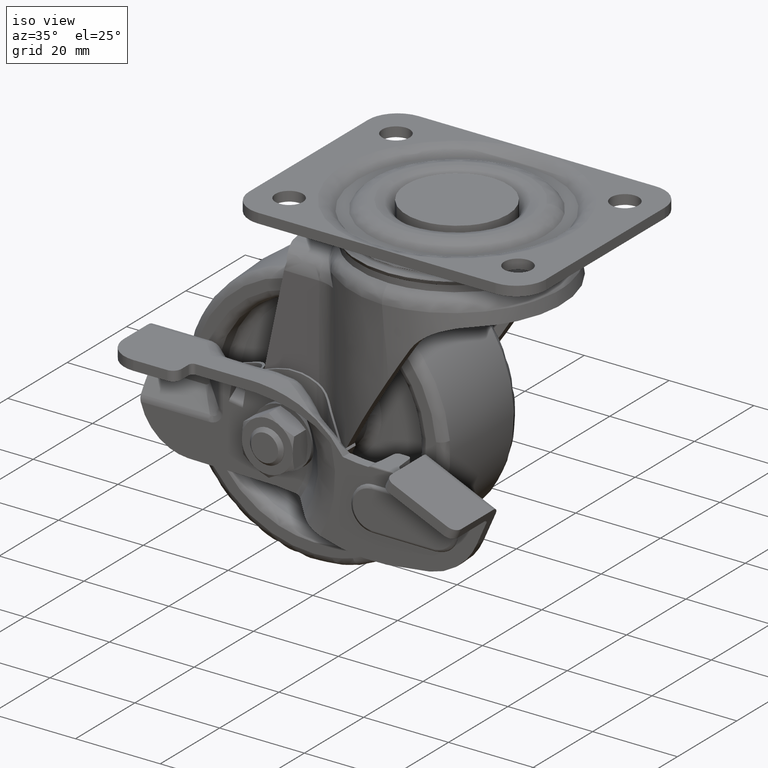
[diagram: clean part render]
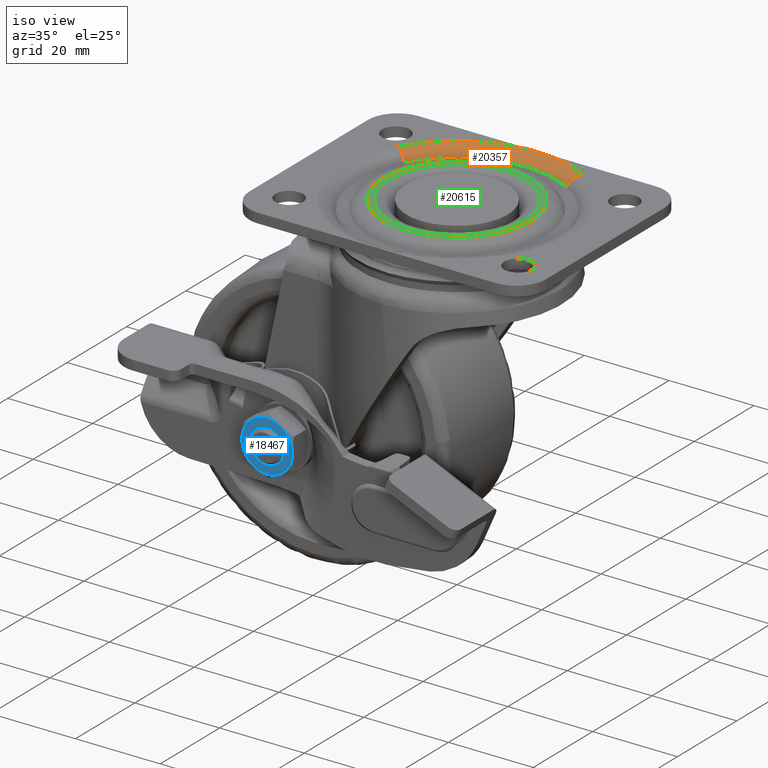
[diagram: same view with three faces highlighted in distinct colors, each labeled with its STEP entity id]
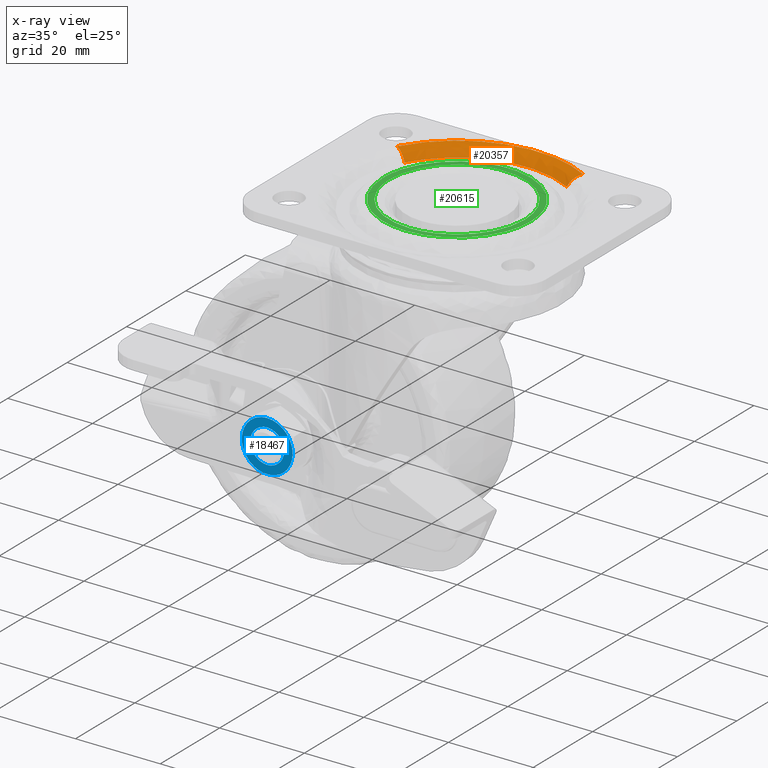
[diagram: x-ray of the same camera — body ghosted, the three highlighted faces saturated]
A machine part, iso view with three faces highlighted in distinct colors.
The next image is the same camera in x-ray (body ghosted, the three faces saturated) — at least one of them is partly hidden behind the body in this view.
Their STEP definitions:

[orange] entity #20357 — the highlighted face is a freeform B-spline surface patch.
#20154=CARTESIAN_POINT('',(11.579092526667321,20.449318235165091,-1.999999999108966));
#20155=VERTEX_POINT('',#20154);
#20205=CARTESIAN_POINT('',(-20.449318235477602,11.579092526888640,-1.999999998449067));
#20206=VERTEX_POINT('',#20205);
#20216=CARTESIAN_POINT('',(-23.463721929436009,13.285945149702910,-3.123845E-012));
#20217=VERTEX_POINT('',#20216);
#20218=CARTESIAN_POINT('',(-20.449318235477602,11.579092526888640,-1.999999998449067));
#20219=CARTESIAN_POINT('',(-20.667339708762839,11.702543164913401,-1.565164073937066));
#20220=CARTESIAN_POINT('',(-21.134728697079900,11.967193723795690,-0.943588587144106));
#20221=CARTESIAN_POINT('',(-21.881321006400949,12.389938355912690,-0.410306147462007));
#20222=CARTESIAN_POINT('',(-22.609500390713428,12.802257101068120,-0.087504078621287));
#20223=CARTESIAN_POINT('',(-23.121974803535299,13.092436781064089,0.000199658189767));
#20224=CARTESIAN_POINT('',(-23.463721929436009,13.285945149702910,-3.123845E-012));
#20225=B_SPLINE_CURVE_WITH_KNOTS('',3,(#20218,#20219,#20220,#20221,#20222,#20223,#20224),.UNSPECIFIED.,.F.,.U.,(4,1,1,1,4),(0.000000103186929,1.505367290253096,2.421646078311489,3.010721266287637,4.188833391078926),.UNSPECIFIED.);
#20226=EDGE_CURVE('',#20206,#20217,#20225,.T.);
#20277=CARTESIAN_POINT('',(13.285945149702901,23.463721929436009,-3.123845E-012));
#20278=VERTEX_POINT('',#20277);
#20292=CARTESIAN_POINT('',(11.579092526667321,20.449318235165091,-1.999999999108966));
#20293=CARTESIAN_POINT('',(11.675771421454320,20.620059151319801,-1.659809095683757));
#20294=CARTESIAN_POINT('',(11.898795928529131,21.013934042757469,-1.089957049776097));
#20295=CARTESIAN_POINT('',(12.336376419593311,21.786727456032420,-0.442384095709560));
#20296=CARTESIAN_POINT('',(12.802205228452641,22.609408789777550,-0.077765672591166));
#20297=CARTESIAN_POINT('',(13.135451312346911,23.197940987953508,0.000042837590866));
#20298=CARTESIAN_POINT('',(13.285945149702901,23.463721929436009,-3.123845E-012));
#20299=B_SPLINE_CURVE_WITH_KNOTS('',3,(#20292,#20293,#20294,#20295,#20296,#20297,#20298),.UNSPECIFIED.,.F.,.U.,(4,1,1,1,4),(0.000000103186815,1.178112228230108,2.159833247337222,3.272528872624006,4.188833391974493),.UNSPECIFIED.);
#20300=EDGE_CURVE('',#20155,#20278,#20299,.T.);
#20305=CARTESIAN_POINT('',(-20.366772381418397,11.532352284864949,-2.174132972196624));
#20306=CARTESIAN_POINT('',(-8.834420096553451,31.899124666283349,-2.174132972196625));
#20307=CARTESIAN_POINT('',(11.532352284864949,20.366772381418397,-2.174132972196624));
#20308=CARTESIAN_POINT('',(-21.392370617572766,12.113080538736886,0.123181683351054));
#20309=CARTESIAN_POINT('',(-9.279290078835881,33.505451156309640,0.123181683351053));
#20310=CARTESIAN_POINT('',(12.113080538736885,21.392370617572766,0.123181683351054));
#20311=CARTESIAN_POINT('',(-23.636422507119839,13.383738277288755,-0.004926481574830));
#20312=CARTESIAN_POINT('',(-10.252684229831091,37.020160784408588,-0.004926481574830));
#20313=CARTESIAN_POINT('',(13.383738277288755,23.636422507119839,-0.004926481574830));
#20321=(BOUNDED_SURFACE()B_SPLINE_SURFACE(2,2,((#20305,#20308,#20311),(#20306,#20309,#20312),(#20307,#20310,#20313)),.UNSPECIFIED.,.F.,.F.,.U.)B_SPLINE_SURFACE_WITH_KNOTS((3,3),(3,3),(0.0,45.004410693223832),(0.0,4.715473630910199),.UNSPECIFIED.)GEOMETRIC_REPRESENTATION_ITEM()RATIONAL_B_SPLINE_SURFACE(((0.922415941458406,0.774511287878427,0.921293500590932),(0.652246567279812,0.547662183764362,0.651452881730940),(0.922415941458406,0.774511287878427,0.921293500590932)))REPRESENTATION_ITEM('')SURFACE());
#20322=CARTESIAN_POINT('',(11.579092526667321,20.449318235165091,-1.999999999108966));
#20323=CARTESIAN_POINT('',(9.948107542508792,21.373402557426239,-1.999999999297025));
#20324=CARTESIAN_POINT('',(7.222917229679042,22.510457577639372,-1.999999999545677));
#20325=CARTESIAN_POINT('',(2.886759158429986,23.427614077727689,-1.999999999797613));
#20326=CARTESIAN_POINT('',(-0.537670886811999,23.584661608587819,-1.999999999905108));
#20327=CARTESIAN_POINT('',(-3.936812261396442,23.227951750663522,-1.999999999929368));
#20328=CARTESIAN_POINT('',(-7.363206009017166,22.435971282826991,-1.999999999883969));
#20329=CARTESIAN_POINT('',(-11.107366520238120,20.870752664619420,-1.999999999721746));
#20330=CARTESIAN_POINT('',(-14.765537888610121,18.441544232278400,-1.999999999418278));
#20331=CARTESIAN_POINT('',(-17.935918099471799,15.403159088913190,-1.999999999004777));
#20332=CARTESIAN_POINT('',(-19.667984509895270,12.959457770347820,-1.999999998652713));
#20333=CARTESIAN_POINT('',(-20.449318235477602,11.579092526888640,-1.999999998449067));
#20334=B_SPLINE_CURVE_WITH_KNOTS('',3,(#20322,#20323,#20324,#20325,#20326,#20327,#20328,#20329,#20330,#20331,#20332,#20333),.UNSPECIFIED.,.F.,.U.,(4,1,1,1,1,1,1,1,1,4),(0.000000087716238,5.623562546316236,8.795857296277909,13.265891587235149,15.861397017090280,19.033609180059258,23.792053901979830,27.973719063147641,32.155360136803083,36.913771588381842),.UNSPECIFIED.);
#20335=EDGE_CURVE('',#20155,#20206,#20334,.T.);
#20336=ORIENTED_EDGE('',*,*,#20335,.F.);
#20337=ORIENTED_EDGE('',*,*,#20300,.T.);
#20338=CARTESIAN_POINT('',(-23.463721929436009,13.285945149702910,-3.123845E-012));
#20339=CARTESIAN_POINT('',(-22.594375627633202,14.821784596876940,-3.123845E-012));
#20340=CARTESIAN_POINT('',(-20.999016994621680,17.087160395097449,-3.123845E-012));
#20341=CARTESIAN_POINT('',(-18.086499953801280,20.110226124292382,-3.123845E-012));
#20342=CARTESIAN_POINT('',(-15.482525794744710,22.169014323480539,-3.123845E-012));
#20343=CARTESIAN_POINT('',(-12.404400863606989,24.014751358837579,-3.123845E-012));
#20344=CARTESIAN_POINT('',(-9.224783754493242,25.436686641030569,-3.123845E-012));
#20345=CARTESIAN_POINT('',(-5.553849674073269,26.477594346114099,-3.123845E-012));
#20346=CARTESIAN_POINT('',(-1.500789820324333,27.028923884047870,-3.123845E-012));
#20347=CARTESIAN_POINT('',(2.926790139934020,26.948443076685962,-3.123845E-012));
#20348=CARTESIAN_POINT('',(8.087382480248008,25.922884655503530,-3.123845E-012));
#20349=CARTESIAN_POINT('',(11.510480663702131,24.469555763966198,-3.123845E-012));
#20350=CARTESIAN_POINT('',(13.285945149702901,23.463721929436009,-3.123845E-012));
#20351=B_SPLINE_CURVE_WITH_KNOTS('',3,(#20338,#20339,#20340,#20341,#20342,#20343,#20344,#20345,#20346,#20347,#20348,#20349,#20350),.UNSPECIFIED.,.F.,.U.,(4,1,1,1,1,1,1,1,1,1,4),(0.000000079545813,5.294366259171376,8.272494415683639,12.574204151691580,15.221414169921310,19.026785835011228,22.997505670743031,26.637406528254591,31.270028850923659,36.233550659921818,42.355171554741993),.UNSPECIFIED.);
#20352=EDGE_CURVE('',#20217,#20278,#20351,.T.);
#20353=ORIENTED_EDGE('',*,*,#20352,.F.);
#20354=ORIENTED_EDGE('',*,*,#20226,.F.);
#20355=EDGE_LOOP('',(#20336,#20337,#20353,#20354));
#20356=FACE_OUTER_BOUND('',#20355,.T.);
#20357=ADVANCED_FACE('',(#20356),#20321,.T.);

[blue] entity #18467 — the highlighted face is a freeform B-spline surface patch.
#17665=CARTESIAN_POINT('',(-27.753418112016139,-28.250015999999999,-51.401415037337642));
#17666=VERTEX_POINT('',#17665);
#17672=CARTESIAN_POINT('',(-25.0,-28.250015999999999,-52.499918000000008));
#17673=VERTEX_POINT('',#17672);
#17674=CARTESIAN_POINT('',(-25.0,-28.250015999999999,-52.499918000000008));
#17675=CARTESIAN_POINT('',(-25.284705822754159,-28.250015999999999,-52.499954852569097));
#17676=CARTESIAN_POINT('',(-25.885746901701221,-28.250016000000009,-52.435499309340827));
#17677=CARTESIAN_POINT('',(-26.849494685198579,-28.250016000000041,-52.103178253846103));
#17678=CARTESIAN_POINT('',(-27.455219170655091,-28.250015999999949,-51.684627906838422));
#17679=CARTESIAN_POINT('',(-27.753418112016139,-28.250015999999999,-51.401415037337642));
#17680=B_SPLINE_CURVE_WITH_KNOTS('',3,(#17674,#17675,#17676,#17677,#17678,#17679),.UNSPECIFIED.,.F.,.U.,(4,1,1,4),(0.000000020141199,0.854140584083326,1.803184963995141,3.036944106622252),.UNSPECIFIED.);
#17681=EDGE_CURVE('',#17673,#17666,#17680,.T.);
#17683=CARTESIAN_POINT('',(-21.000000000000409,-28.250015999999999,-48.499919823870663));
#17684=VERTEX_POINT('',#17683);
#17685=CARTESIAN_POINT('',(-21.000000000000409,-28.250015999999999,-48.499919823870663));
#17686=CARTESIAN_POINT('',(-20.999580745622790,-28.250015999999999,-48.990838033271643));
#17687=CARTESIAN_POINT('',(-21.164737531833399,-28.250016000000020,-49.874151961591089));
#17688=CARTESIAN_POINT('',(-21.735485018725260,-28.250015999999999,-50.881510764526531));
#17689=CARTESIAN_POINT('',(-22.370477770716150,-28.250015999999960,-51.548277451705900));
#17690=CARTESIAN_POINT('',(-23.015692667234070,-28.250016000000041,-52.002694219478172));
#17691=CARTESIAN_POINT('',(-23.887485024111800,-28.250015999999992,-52.389206611084902));
#17692=CARTESIAN_POINT('',(-24.574542251158661,-28.250015999999999,-52.500149301094517));
#17693=CARTESIAN_POINT('',(-25.0,-28.250015999999999,-52.499918000000008));
#17694=B_SPLINE_CURVE_WITH_KNOTS('',3,(#17685,#17686,#17687,#17688,#17689,#17690,#17691,#17692,#17693),.UNSPECIFIED.,.F.,.U.,(4,1,1,1,1,1,4),(0.000000079306872,1.472657713609372,2.650798514433285,3.436192366031384,4.221616221082365,5.007039776595150,6.283341949348713),.UNSPECIFIED.);
#17695=EDGE_CURVE('',#17684,#17673,#17694,.T.);
#17697=CARTESIAN_POINT('',(-25.0,-28.250015999999999,-44.499918000000001));
#17698=VERTEX_POINT('',#17697);
#17699=CARTESIAN_POINT('',(-25.0,-28.250015999999999,-44.499918000000001));
#17700=CARTESIAN_POINT('',(-24.640025959526099,-28.250015999999999,-44.499828614313017));
#17701=CARTESIAN_POINT('',(-23.887360415923091,-28.250015999999999,-44.602129077564953));
#17702=CARTESIAN_POINT('',(-22.949842960383140,-28.250016000000020,-45.017667371528063));
#17703=CARTESIAN_POINT('',(-22.224057994465930,-28.250015999999938,-45.584272423137683));
#17704=CARTESIAN_POINT('',(-21.708572065764621,-28.250016000000059,-46.181832820393467));
#17705=CARTESIAN_POINT('',(-21.352018039028440,-28.250015999999938,-46.811283863346972));
#17706=CARTESIAN_POINT('',(-21.075637783710238,-28.250015999999992,-47.583685174665682));
#17707=CARTESIAN_POINT('',(-20.999869770593470,-28.250016000000102,-48.139928410978897));
#17708=CARTESIAN_POINT('',(-21.000000000000409,-28.250015999999999,-48.499919823870663));
#17709=B_SPLINE_CURVE_WITH_KNOTS('',3,(#17699,#17700,#17701,#17702,#17703,#17704,#17705,#17706,#17707,#17708),.UNSPECIFIED.,.F.,.U.,(4,1,1,1,1,1,1,4),(0.000000076809694,1.079948932013005,2.258086608420316,3.043500448031317,3.828902889243668,4.614330580741747,5.203398442086584,6.283344005327290),.UNSPECIFIED.);
#17710=EDGE_CURVE('',#17698,#17684,#17709,.T.);
#17712=CARTESIAN_POINT('',(-28.054223018213460,-28.250015999999999,-45.916949678063993));
#17713=VERTEX_POINT('',#17712);
#17714=CARTESIAN_POINT('',(-28.054223018213460,-28.250015999999999,-45.916949678063993));
#17715=CARTESIAN_POINT('',(-27.843883448466290,-28.250016000000031,-45.668149198862579));
#17716=CARTESIAN_POINT('',(-27.295114688978380,-28.250015999999970,-45.160312733674033));
#17717=CARTESIAN_POINT('',(-26.248850086345278,-28.250016000000031,-44.630970427653423));
#17718=CARTESIAN_POINT('',(-25.416312784114240,-28.250015999999981,-44.499747137123613));
#17719=CARTESIAN_POINT('',(-25.0,-28.250015999999999,-44.499918000000001));
#17720=B_SPLINE_CURVE_WITH_KNOTS('',3,(#17714,#17715,#17716,#17717,#17718,#17719),.UNSPECIFIED.,.F.,.U.,(4,1,1,4),(0.000000059396193,0.977411564474417,2.226317862732106,3.475233528307974),.UNSPECIFIED.);
#17721=EDGE_CURVE('',#17713,#17698,#17720,.T.);
#17747=CARTESIAN_POINT('',(-28.999999999999581,-28.250015999999999,-48.499916176129332));
#17748=VERTEX_POINT('',#17747);
#17749=CARTESIAN_POINT('',(-28.999999999999581,-28.250015999999999,-48.499916176129332));
#17750=CARTESIAN_POINT('',(-29.000266967125050,-28.250016000000009,-48.061134219782573));
#17751=CARTESIAN_POINT('',(-28.844391664076880,-28.250016000000020,-47.125332338930612));
#17752=CARTESIAN_POINT('',(-28.375687039188431,-28.250015999999981,-46.296387339978352));
#17753=CARTESIAN_POINT('',(-28.054223018213460,-28.250015999999999,-45.916949678063993));
#17754=B_SPLINE_CURVE_WITH_KNOTS('',3,(#17749,#17750,#17751,#17752,#17753),.UNSPECIFIED.,.F.,.U.,(4,1,4),(0.000000040111617,1.316276301887415,2.808033284928421),.UNSPECIFIED.);
#17755=EDGE_CURVE('',#17748,#17713,#17754,.T.);
#17757=CARTESIAN_POINT('',(-27.753418112016139,-28.250015999999999,-51.401415037337642));
#17758=CARTESIAN_POINT('',(-28.072459679604052,-28.250016000000009,-51.098959793678191));
#17759=CARTESIAN_POINT('',(-28.557596002332751,-28.250015999999960,-50.455902530989732));
#17760=CARTESIAN_POINT('',(-28.930503551898742,-28.250016000000109,-49.429849342154832));
#17761=CARTESIAN_POINT('',(-29.000034039182822,-28.250015999999999,-48.787347509675151));
#17762=CARTESIAN_POINT('',(-28.999999999999581,-28.250015999999999,-48.499916176129332));
#17763=B_SPLINE_CURVE_WITH_KNOTS('',3,(#17757,#17758,#17759,#17760,#17761,#17762),.UNSPECIFIED.,.F.,.U.,(4,1,1,4),(0.000000047715678,1.318834995454643,2.384027400634333,3.246335628421765),.UNSPECIFIED.);
#17764=EDGE_CURVE('',#17666,#17748,#17763,.T.);
#17905=CARTESIAN_POINT('',(-31.0,-28.250015999999999,-48.499918000000001));
#17906=VERTEX_POINT('',#17905);
#17992=CARTESIAN_POINT('',(-19.0,-28.250015999999999,-48.499918000000001));
#17993=VERTEX_POINT('',#17992);
#18053=CARTESIAN_POINT('',(-21.972066247403649,-28.250015999999999,-53.679842438627297));
#18054=VERTEX_POINT('',#18053);
#18068=CARTESIAN_POINT('',(-22.028020221265798,-28.250015999999999,-53.712147484087900));
#18069=VERTEX_POINT('',#18068);
#18070=CARTESIAN_POINT('',(-22.028020221265798,-28.250015999999999,-53.712147484087900));
#18071=CARTESIAN_POINT('',(-21.972066247403649,-28.250015999999999,-53.679842438627297));
#18072=QUASI_UNIFORM_CURVE('',1,(#18070,#18071),.UNSPECIFIED.,.F.,.U.);
#18073=EDGE_CURVE('',#18069,#18054,#18072,.T.);
#18145=CARTESIAN_POINT('',(-27.971979778734251,-28.250015999999999,-53.712147484087900));
#18146=VERTEX_POINT('',#18145);
#18160=CARTESIAN_POINT('',(-28.027933752596450,-28.250015999999999,-53.679842438627198));
#18161=VERTEX_POINT('',#18160);
#18162=CARTESIAN_POINT('',(-28.027933752596450,-28.250015999999999,-53.679842438627198));
#18163=CARTESIAN_POINT('',(-27.971979778734251,-28.250015999999999,-53.712147484087900));
#18164=QUASI_UNIFORM_CURVE('',1,(#18162,#18163),.UNSPECIFIED.,.F.,.U.);
#18165=EDGE_CURVE('',#18161,#18146,#18164,.T.);
#18390=CARTESIAN_POINT('',(-31.599399976741669,-28.250015999999999,-41.900520238371570));
#18391=CARTESIAN_POINT('',(-31.599399976741669,-28.250015999999999,-55.099311899247652));
#18392=CARTESIAN_POINT('',(-18.400599701393251,-28.250015999999999,-41.900520238371570));
#18393=CARTESIAN_POINT('',(-18.400599701393251,-28.250015999999999,-55.099311899247652));
#18394=B_SPLINE_SURFACE_WITH_KNOTS('',1,1,((#18390,#18392),(#18391,#18393)),.UNSPECIFIED.,.F.,.F.,.U.,(2,2),(2,2),(0.0,13.198791660876079),(0.0,13.198800275348431),.UNSPECIFIED.);
#18395=CARTESIAN_POINT('',(-22.028020221265798,-28.250015999999999,-53.712147484087900));
#18396=CARTESIAN_POINT('',(-22.450010580693199,-28.250016000000020,-53.952899609053873));
#18397=CARTESIAN_POINT('',(-23.322793458218470,-28.250015999999949,-54.318355512276149));
#18398=CARTESIAN_POINT('',(-24.770452881699470,-28.250015999999999,-54.555016674100067));
#18399=CARTESIAN_POINT('',(-26.365626094895848,-28.250016000000009,-54.425513021288651));
#18400=CARTESIAN_POINT('',(-27.437512772106569,-28.250016000000020,-54.017258107177938));
#18401=CARTESIAN_POINT('',(-27.971979778734251,-28.250015999999999,-53.712147484087900));
#18402=B_SPLINE_CURVE_WITH_KNOTS('',3,(#18395,#18396,#18397,#18398,#18399,#18400,#18401),.UNSPECIFIED.,.F.,.U.,(4,1,1,1,4),(0.000000068481035,1.457493459492801,2.817853750318442,4.372476338247771,6.218643431526248),.UNSPECIFIED.);
#18403=EDGE_CURVE('',#18069,#18146,#18402,.T.);
#18404=ORIENTED_EDGE('',*,*,#18403,.F.);
#18405=ORIENTED_EDGE('',*,*,#18073,.T.);
#18406=CARTESIAN_POINT('',(-19.0,-28.250015999999999,-48.499918000000001));
#18407=CARTESIAN_POINT('',(-18.999986657961241,-28.250016000000009,-48.858036075209419));
#18408=CARTESIAN_POINT('',(-19.075913998104038,-28.250015999999970,-49.704536917732511));
#18409=CARTESIAN_POINT('',(-19.445603848469879,-28.250016000000130,-50.894815956111387));
#18410=CARTESIAN_POINT('',(-20.096839614741850,-28.250015999999881,-52.029773339099499));
#18411=CARTESIAN_POINT('',(-20.921300204829961,-28.250015999999949,-52.961449590847728));
#18412=CARTESIAN_POINT('',(-21.606645344506170,-28.250015999999960,-53.466305782203079));
#18413=CARTESIAN_POINT('',(-21.972066247403649,-28.250015999999999,-53.679842438627297));
#18414=B_SPLINE_CURVE_WITH_KNOTS('',3,(#18406,#18407,#18408,#18409,#18410,#18411,#18412,#18413),.UNSPECIFIED.,.F.,.U.,(4,1,1,1,1,4),(0.000000070243425,1.074379678522299,2.539456978128712,3.711491920877545,4.981232323117724,6.250948828760961),.UNSPECIFIED.);
#18415=EDGE_CURVE('',#17993,#18054,#18414,.T.);
#18416=ORIENTED_EDGE('',*,*,#18415,.F.);
#18417=CARTESIAN_POINT('',(-24.999998530000990,-28.250015999999999,-42.499918000000193));
#18418=VERTEX_POINT('',#18417);
#18419=CARTESIAN_POINT('',(-24.999998530000990,-28.250015999999999,-42.499918000000193));
#18420=CARTESIAN_POINT('',(-24.337245331388800,-28.250015999999871,-42.499451518315759));
#18421=CARTESIAN_POINT('',(-23.282213185553289,-28.250016000000318,-42.676689487324737));
#18422=CARTESIAN_POINT('',(-21.869529007611629,-28.250015999999540,-43.323683865140517));
#18423=CARTESIAN_POINT('',(-20.885570794111221,-28.250016000000539,-44.072394472390293));
#18424=CARTESIAN_POINT('',(-20.048863705853240,-28.250015999999629,-45.042405130257237));
#18425=CARTESIAN_POINT('',(-19.525503511914341,-28.250016000000151,-45.966264008064456));
#18426=CARTESIAN_POINT('',(-19.110128858443080,-28.250015999999871,-47.150120504379473));
#18427=CARTESIAN_POINT('',(-18.999806747536791,-28.250016000000169,-47.959934244931262));
#18428=CARTESIAN_POINT('',(-19.0,-28.250015999999999,-48.499918000000001));
#18429=B_SPLINE_CURVE_WITH_KNOTS('',3,(#18419,#18420,#18421,#18422,#18423,#18424,#18425,#18426,#18427,#18428),.UNSPECIFIED.,.F.,.U.,(4,1,1,1,1,1,1,4),(0.000000173877893,1.988042527092850,3.166163457335657,4.638838968294664,5.669625162698044,6.994994671416410,7.804961798840941,9.424836268742064),.UNSPECIFIED.);
#18430=EDGE_CURVE('',#18418,#17993,#18429,.T.);
#18431=ORIENTED_EDGE('',*,*,#18430,.F.);
#18432=CARTESIAN_POINT('',(-31.0,-28.250015999999999,-48.499918000000001));
#18433=CARTESIAN_POINT('',(-31.000085320843070,-28.250015999999981,-48.058125053978259));
#18434=CARTESIAN_POINT('',(-30.918279416570439,-28.250016000000009,-47.321856482955390));
#18435=CARTESIAN_POINT('',(-30.568277620678899,-28.250015999999999,-46.167844440469892));
#18436=CARTESIAN_POINT('',(-29.992603411541861,-28.250016000000041,-45.074612563522983));
#18437=CARTESIAN_POINT('',(-29.147303010968390,-28.250016000000031,-44.106835769393413));
#18438=CARTESIAN_POINT('',(-28.127814169323631,-28.250016000000151,-43.331191287932761));
#18439=CARTESIAN_POINT('',(-26.791473516600551,-28.250015999999800,-42.688940902356819));
#18440=CARTESIAN_POINT('',(-25.662724893732541,-28.250016000000169,-42.499488238384643));
#18441=CARTESIAN_POINT('',(-24.999998530000990,-28.250015999999999,-42.499918000000193));
#18442=B_SPLINE_CURVE_WITH_KNOTS('',3,(#18432,#18433,#18434,#18435,#18436,#18437,#18438,#18439,#18440,#18441),.UNSPECIFIED.,.F.,.U.,(4,1,1,1,1,1,1,4),(0.000000173345299,1.325365151850647,2.208944374145928,3.607970741709464,5.006894018057435,6.037780915708776,7.436795908420454,9.424837925784054),.UNSPECIFIED.);
#18443=EDGE_CURVE('',#17906,#18418,#18442,.T.);
#18444=ORIENTED_EDGE('',*,*,#18443,.F.);
#18445=CARTESIAN_POINT('',(-28.027933752596450,-28.250015999999999,-53.679842438627198));
#18446=CARTESIAN_POINT('',(-28.562171722347362,-28.250015999999981,-53.367927134464857));
#18447=CARTESIAN_POINT('',(-29.302553719378501,-28.250016000000048,-52.764064555956487));
#18448=CARTESIAN_POINT('',(-30.114221161933202,-28.250015999999938,-51.698762161847263));
#18449=CARTESIAN_POINT('',(-30.560472994213939,-28.250016000000080,-50.824742780106313));
#18450=CARTESIAN_POINT('',(-30.908028383005188,-28.250015999999739,-49.737018249499542));
#18451=CARTESIAN_POINT('',(-31.000141237347620,-28.250016000000180,-48.988283374423581));
#18452=CARTESIAN_POINT('',(-31.0,-28.250015999999999,-48.499918000000001));
#18453=B_SPLINE_CURVE_WITH_KNOTS('',3,(#18445,#18446,#18447,#18448,#18449,#18450,#18451,#18452),.UNSPECIFIED.,.F.,.U.,(4,1,1,1,1,4),(0.000000070245489,1.855757943859658,2.832492619721756,4.004498852522128,4.785883879233343,6.250948828760819),.UNSPECIFIED.);
#18454=EDGE_CURVE('',#18161,#17906,#18453,.T.);
#18455=ORIENTED_EDGE('',*,*,#18454,.F.);
#18456=ORIENTED_EDGE('',*,*,#18165,.T.);
#18457=EDGE_LOOP('',(#18404,#18405,#18416,#18431,#18444,#18455,#18456));
#18458=FACE_OUTER_BOUND('',#18457,.T.);
#18459=ORIENTED_EDGE('',*,*,#17710,.T.);
#18460=ORIENTED_EDGE('',*,*,#17695,.T.);
#18461=ORIENTED_EDGE('',*,*,#17681,.T.);
#18462=ORIENTED_EDGE('',*,*,#17764,.T.);
#18463=ORIENTED_EDGE('',*,*,#17755,.T.);
#18464=ORIENTED_EDGE('',*,*,#17721,.T.);
#18465=EDGE_LOOP('',(#18459,#18460,#18461,#18462,#18463,#18464));
#18466=FACE_BOUND('',#18465,.T.);
#18467=ADVANCED_FACE('',(#18458,#18466),#18394,.T.);

[green] entity #20615 — the highlighted face is a freeform B-spline surface patch.
#19755=CARTESIAN_POINT('',(-15.998736705638450,-0.201056638483938,-8.169484E-016));
#19756=VERTEX_POINT('',#19755);
#19770=CARTESIAN_POINT('',(0.100436589124000,-15.999684762255949,0.0));
#19771=VERTEX_POINT('',#19770);
#19772=CARTESIAN_POINT('',(0.100436589124000,-15.999684762255949,0.0));
#19773=CARTESIAN_POINT('',(-0.877357709893840,-16.005901598175690,-2.496431E-017));
#19774=CARTESIAN_POINT('',(-2.899279030653561,-15.832736545146510,-8.133518E-017));
#19775=CARTESIAN_POINT('',(-5.736186950639360,-15.032869257399989,-1.746443E-016));
#19776=CARTESIAN_POINT('',(-7.965912199152066,-13.933028218029211,-2.600103E-016));
#19777=CARTESIAN_POINT('',(-9.806529594049151,-12.693564522723900,-3.389430E-016));
#19778=CARTESIAN_POINT('',(-11.534242569110720,-11.194016408243391,-4.216142E-016));
#19779=CARTESIAN_POINT('',(-13.077688747209271,-9.327398196850554,-5.089214E-016));
#19780=CARTESIAN_POINT('',(-14.483647356966550,-6.972073886596847,-6.051716E-016));
#19781=CARTESIAN_POINT('',(-15.630581631246001,-4.042692205041315,-7.094209E-016));
#19782=CARTESIAN_POINT('',(-15.981903861871990,-1.569910741645686,-7.815722E-016));
#19783=CARTESIAN_POINT('',(-15.998736705638450,-0.201056638483938,-8.169484E-016));
#19784=B_SPLINE_CURVE_WITH_KNOTS('',3,(#19772,#19773,#19774,#19775,#19776,#19777,#19778,#19779,#19780,#19781,#19782,#19783),.UNSPECIFIED.,.F.,.U.,(4,1,1,1,1,1,1,1,1,4),(0.000000017800204,2.933447828345063,6.062501839066453,8.800418551851120,10.364927132497060,12.711698818537659,15.645158848148739,17.600805831412082,20.925429542106230,25.032272356788461),.UNSPECIFIED.);
#19785=EDGE_CURVE('',#19771,#19756,#19784,.T.);
#19787=CARTESIAN_POINT('',(16.0,0.0,0.0));
#19788=VERTEX_POINT('',#19787);
#19789=CARTESIAN_POINT('',(16.0,0.0,0.0));
#19790=CARTESIAN_POINT('',(16.000086453059641,-0.977822644553701,2.496386E-017));
#19791=CARTESIAN_POINT('',(15.826177385011730,-2.868250455310598,6.875481E-017));
#19792=CARTESIAN_POINT('',(15.183034233165140,-5.202060668332542,1.118104E-016));
#19793=CARTESIAN_POINT('',(14.311996503686981,-7.243035468424894,1.415363E-016));
#19794=CARTESIAN_POINT('',(13.262625563183910,-9.052392211580942,1.607683E-016));
#19795=CARTESIAN_POINT('',(11.837912702442081,-10.842344217381831,1.698630E-016));
#19796=CARTESIAN_POINT('',(10.082332501286080,-12.504219329815310,1.671888E-016));
#19797=CARTESIAN_POINT('',(7.822517459781398,-14.067725774496310,1.490503E-016));
#19798=CARTESIAN_POINT('',(5.484159701989151,-15.100017055913749,1.153334E-016));
#19799=CARTESIAN_POINT('',(2.837145959380656,-15.812447358702761,6.552228E-017));
#19800=CARTESIAN_POINT('',(1.208633307523055,-15.992923068495770,2.829533E-017));
#19801=CARTESIAN_POINT('',(0.100436589124000,-15.999684762255949,0.0));
#19802=B_SPLINE_CURVE_WITH_KNOTS('',3,(#19789,#19790,#19791,#19792,#19793,#19794,#19795,#19796,#19797,#19798,#19799,#19800,#19801),.UNSPECIFIED.,.F.,.U.,(4,1,1,1,1,1,1,1,1,1,4),(0.000000017806080,2.933469793400636,5.671411065688236,7.235953867168373,9.582744029592641,11.929537368543910,14.080756857823070,16.818669771442892,20.143319401113530,21.707848705617842,25.032459794613128),.UNSPECIFIED.);
#19803=EDGE_CURVE('',#19788,#19771,#19802,.T.);
#19805=CARTESIAN_POINT('',(-1.115732025242646,15.961050781217860,-7.071713E-016));
#19806=VERTEX_POINT('',#19805);
#19807=CARTESIAN_POINT('',(-1.115732025242646,15.961050781217860,-7.071713E-016));
#19808=CARTESIAN_POINT('',(0.214019039555648,16.054399497619951,-6.111636E-016));
#19809=CARTESIAN_POINT('',(2.139970995114632,15.947393375941029,-4.795699E-016));
#19810=CARTESIAN_POINT('',(4.903234586904830,15.286910694826270,-3.063791E-016));
#19811=CARTESIAN_POINT('',(6.818139925693469,14.531811993045970,-1.955194E-016));
#19812=CARTESIAN_POINT('',(8.785736869260639,13.422423547945019,-9.188086E-017));
#19813=CARTESIAN_POINT('',(10.409563693104991,12.217556171475721,-1.525977E-017));
#19814=CARTESIAN_POINT('',(12.071538249355180,10.586075246227381,5.089406E-017));
#19815=CARTESIAN_POINT('',(13.753609193190520,8.375943327027766,1.006339E-016));
#19816=CARTESIAN_POINT('',(14.963263744983220,5.903483645776650,1.092074E-016));
#19817=CARTESIAN_POINT('',(15.801692367658671,2.973459607923362,7.768888E-017));
#19818=CARTESIAN_POINT('',(16.000224787693369,1.162099389924119,3.580658E-017));
#19819=CARTESIAN_POINT('',(16.0,0.0,0.0));
#19820=B_SPLINE_CURVE_WITH_KNOTS('',3,(#19807,#19808,#19809,#19810,#19811,#19812,#19813,#19814,#19815,#19816,#19817,#19818,#19819),.UNSPECIFIED.,.F.,.U.,(4,1,1,1,1,1,1,1,1,1,4),(0.000000100107300,3.998923407888391,5.742057730958504,8.510574892076392,10.151165398268690,12.509524946046270,14.560183784448871,17.123629904004339,20.814978597373841,22.763188729408458,26.249424406196120),.UNSPECIFIED.);
#19821=EDGE_CURVE('',#19806,#19788,#19820,.T.);
#19858=CARTESIAN_POINT('',(-16.0,0.0,0.0));
#19859=VERTEX_POINT('',#19858);
#19860=CARTESIAN_POINT('',(-16.0,0.0,0.0));
#19861=CARTESIAN_POINT('',(-16.000221190987979,1.250850907372727,1.050908E-020));
#19862=CARTESIAN_POINT('',(-15.712565244813540,3.689885628848298,-1.365641E-017));
#19863=CARTESIAN_POINT('',(-14.645678733489669,6.650044306284485,-6.434560E-017));
#19864=CARTESIAN_POINT('',(-13.333363392053229,8.931850632575362,-1.266954E-016));
#19865=CARTESIAN_POINT('',(-11.917198712734070,10.769189170240450,-1.939793E-016));
#19866=CARTESIAN_POINT('',(-10.373146620408869,12.241616986020169,-2.673393E-016));
#19867=CARTESIAN_POINT('',(-8.656369767649517,13.500329517149790,-3.489056E-016));
#19868=CARTESIAN_POINT('',(-6.801601433063073,14.551056129809290,-4.370281E-016));
#19869=CARTESIAN_POINT('',(-4.220362169384568,15.531403903353160,-5.596662E-016));
#19870=CARTESIAN_POINT('',(-2.238762093838304,15.882718712315420,-6.538146E-016));
#19871=CARTESIAN_POINT('',(-1.115732025242646,15.961050781217860,-7.071713E-016));
#19872=B_SPLINE_CURVE_WITH_KNOTS('',3,(#19860,#19861,#19862,#19863,#19864,#19865,#19866,#19867,#19868,#19869,#19870,#19871),.UNSPECIFIED.,.F.,.U.,(4,1,1,1,1,1,1,1,1,4),(0.000000024992090,3.752526883466793,7.317452982039086,9.381375297203254,11.632874030947731,14.259607692890480,15.760645156253251,18.012180433744959,20.638977279540288,24.016240567676000),.UNSPECIFIED.);
#19873=EDGE_CURVE('',#19859,#19806,#19872,.T.);
#19875=CARTESIAN_POINT('',(-15.998736705638450,-0.201056638483938,-8.169484E-016));
#19876=CARTESIAN_POINT('',(-16.0,0.0,0.0));
#19877=QUASI_UNIFORM_CURVE('',1,(#19875,#19876),.UNSPECIFIED.,.F.,.U.);
#19878=EDGE_CURVE('',#19756,#19859,#19877,.T.);
#19914=CARTESIAN_POINT('',(-9.259911339710168,14.773780647140780,-7.469925E-016));
#19915=VERTEX_POINT('',#19914);
#19916=CARTESIAN_POINT('',(-17.435898384862249,0.0,0.0));
#19917=VERTEX_POINT('',#19916);
#19918=CARTESIAN_POINT('',(-9.259911339710168,14.773780647140780,-7.469925E-016));
#19919=CARTESIAN_POINT('',(-9.921106177859008,14.359380896494701,-6.865830E-016));
#19920=CARTESIAN_POINT('',(-11.374044571787341,13.306678983069361,-5.538364E-016));
#19921=CARTESIAN_POINT('',(-13.108356417325780,11.587549971518710,-3.953824E-016));
#19922=CARTESIAN_POINT('',(-14.716927628613560,9.461007409389371,-2.484166E-016));
#19923=CARTESIAN_POINT('',(-15.787814963411410,7.526003266024378,-1.505758E-016));
#19924=CARTESIAN_POINT('',(-16.704594838580679,5.170680180767341,-6.681496E-017));
#19925=CARTESIAN_POINT('',(-17.286942900819952,2.799997270016026,-1.360920E-017));
#19926=CARTESIAN_POINT('',(-17.435955342760270,0.918031215412780,5.203913E-021));
#19927=CARTESIAN_POINT('',(-17.435898384862249,0.0,0.0));
#19928=B_SPLINE_CURVE_WITH_KNOTS('',3,(#19918,#19919,#19920,#19921,#19922,#19923,#19924,#19925,#19926,#19927),.UNSPECIFIED.,.F.,.U.,(4,1,1,1,1,1,1,4),(0.000000043834053,2.340982186825295,5.370518302663713,7.298418401222026,10.327890925303700,11.980371094670470,14.872212628232020,17.626309012880650),.UNSPECIFIED.);
#19929=EDGE_CURVE('',#19915,#19917,#19928,.T.);
#20004=CARTESIAN_POINT('',(15.279194228636641,8.399808109078002,-7.910387E-016));
#20005=VERTEX_POINT('',#20004);
#20016=CARTESIAN_POINT('',(17.435898384862249,0.0,0.0));
#20017=VERTEX_POINT('',#20016);
#20018=CARTESIAN_POINT('',(17.435898384862249,0.0,0.0));
#20019=CARTESIAN_POINT('',(17.436363754527900,1.506386741035639,1.706889E-019));
#20020=CARTESIAN_POINT('',(17.054760218229141,4.427550832440734,-1.397943E-016));
#20021=CARTESIAN_POINT('',(15.961217511547121,7.159908992570634,-5.408853E-016));
#20022=CARTESIAN_POINT('',(15.279194228636641,8.399808109078002,-7.910387E-016));
#20023=B_SPLINE_CURVE_WITH_KNOTS('',3,(#20018,#20019,#20020,#20021,#20022),.UNSPECIFIED.,.F.,.U.,(4,1,4),(0.000000011649277,4.519055384424827,8.764260969736609),.UNSPECIFIED.);
#20024=EDGE_CURVE('',#20017,#20005,#20023,.T.);
#20026=CARTESIAN_POINT('',(0.000001755865478,-17.435898384862160,0.0));
#20027=VERTEX_POINT('',#20026);
#20028=CARTESIAN_POINT('',(0.000001755865478,-17.435898384862160,0.0));
#20029=CARTESIAN_POINT('',(1.105526528617808,-17.436020026223350,0.0));
#20030=CARTESIAN_POINT('',(2.781567799818653,-17.275925405885431,0.0));
#20031=CARTESIAN_POINT('',(5.521910863365060,-16.607421988098700,0.0));
#20032=CARTESIAN_POINT('',(7.977941134769186,-15.607730158799241,0.0));
#20033=CARTESIAN_POINT('',(10.728425839037360,-13.865986187255761,0.0));
#20034=CARTESIAN_POINT('',(13.098769832547861,-11.677672895383401,0.0));
#20035=CARTESIAN_POINT('',(14.847848668216850,-9.273208726020664,0.0));
#20036=CARTESIAN_POINT('',(16.041577086866258,-6.954722551496361,0.0));
#20037=CARTESIAN_POINT('',(17.098768793743918,-4.029527736613958,0.0));
#20038=CARTESIAN_POINT('',(17.436394720605009,-1.604834419239356,0.0));
#20039=CARTESIAN_POINT('',(17.435898384862249,0.0,0.0));
#20040=B_SPLINE_CURVE_WITH_KNOTS('',3,(#20028,#20029,#20030,#20031,#20032,#20033,#20034,#20035,#20036,#20037,#20038,#20039),.UNSPECIFIED.,.F.,.U.,(4,1,1,1,1,1,1,1,1,4),(0.000000092994668,3.316547417481516,5.028306762509867,8.451868666874464,11.233484914244791,14.763959881979529,18.080531205832159,20.113272682956900,22.573955802765390,27.388287111885461),.UNSPECIFIED.);
#20041=EDGE_CURVE('',#20027,#20017,#20040,.T.);
#20043=CARTESIAN_POINT('',(-17.435898384862249,0.0,0.0));
#20044=CARTESIAN_POINT('',(-17.435990859950110,-1.034198702703789,0.0));
#20045=CARTESIAN_POINT('',(-17.286316641171119,-2.710258722347136,0.0));
#20046=CARTESIAN_POINT('',(-16.725127539502001,-5.073242439900367,0.0));
#20047=CARTESIAN_POINT('',(-16.033624676237359,-6.951186085780853,0.0));
#20048=CARTESIAN_POINT('',(-15.015959902961050,-8.957636121571959,0.0));
#20049=CARTESIAN_POINT('',(-13.787202818486790,-10.760461024155211,0.0));
#20050=CARTESIAN_POINT('',(-12.113615404691240,-12.618405242092081,0.0));
#20051=CARTESIAN_POINT('',(-10.224835119514941,-14.207713737981839,0.0));
#20052=CARTESIAN_POINT('',(-8.238540635673136,-15.414818986849269,0.0));
#20053=CARTESIAN_POINT('',(-5.963387335698920,-16.448581508050840,0.0));
#20054=CARTESIAN_POINT('',(-3.316518351593715,-17.224956479968029,0.0));
#20055=CARTESIAN_POINT('',(-1.105512842556923,-17.436015274934690,0.0));
#20056=CARTESIAN_POINT('',(0.000001755865478,-17.435898384862160,0.0));
#20057=B_SPLINE_CURVE_WITH_KNOTS('',3,(#20043,#20044,#20045,#20046,#20047,#20048,#20049,#20050,#20051,#20052,#20053,#20054,#20055,#20056),.UNSPECIFIED.,.F.,.U.,(4,1,1,1,1,1,1,1,1,1,1,4),(0.000000092833631,3.102578658043029,5.028307125830274,7.275015096274398,9.093786557069070,11.768448522138810,13.801072714144320,16.582741846727590,19.150393357966308,20.755188060075810,24.071754365313261,27.388289091158271),.UNSPECIFIED.);
#20058=EDGE_CURVE('',#19917,#20027,#20057,.T.);
#20086=CARTESIAN_POINT('',(15.279194228636641,8.399808109078002,-7.910387E-016));
#20087=CARTESIAN_POINT('',(14.673970361915799,9.501154186841756,-6.696208E-016));
#20088=CARTESIAN_POINT('',(13.351799555212001,11.389214499184170,-4.703833E-016));
#20089=CARTESIAN_POINT('',(11.205926977752400,13.440540212311131,-2.761276E-016));
#20090=CARTESIAN_POINT('',(9.152020129133502,14.896277272544900,-1.549008E-016));
#20091=CARTESIAN_POINT('',(6.732208107971690,16.185462225406582,-6.635764E-017));
#20092=CARTESIAN_POINT('',(3.653317229784666,17.176401313627220,-3.646202E-017));
#20093=CARTESIAN_POINT('',(-0.040467309147030,17.564481674271100,-1.026536E-016));
#20094=CARTESIAN_POINT('',(-3.369104555101456,17.213105216550709,-2.516568E-016));
#20095=CARTESIAN_POINT('',(-6.527798004328418,16.260709602045129,-4.719395E-016));
#20096=CARTESIAN_POINT('',(-8.320451039493747,15.362767076293480,-6.425111E-016));
#20097=CARTESIAN_POINT('',(-9.259911339710168,14.773780647140780,-7.469925E-016));
#20098=B_SPLINE_CURVE_WITH_KNOTS('',3,(#20086,#20087,#20088,#20089,#20090,#20091,#20092,#20093,#20094,#20095,#20096,#20097),.UNSPECIFIED.,.F.,.U.,(4,1,1,1,1,1,1,1,1,4),(0.000000100721987,3.770004735442342,6.874742997106576,8.870646216529639,11.310092767974270,15.080030759459120,18.517438756264401,22.398362757634271,25.059578381015960,28.386036462496069),.UNSPECIFIED.);
#20099=EDGE_CURVE('',#20005,#19915,#20098,.T.);
#20596=CARTESIAN_POINT('',(-19.177744113983650,19.175034542306580,0.0));
#20597=CARTESIAN_POINT('',(19.177742866871011,19.175034542306580,0.0));
#20598=CARTESIAN_POINT('',(-19.177744113983650,-19.177613962580050,0.0));
#20599=CARTESIAN_POINT('',(19.177742866871011,-19.177613962580050,0.0));
#20600=B_SPLINE_SURFACE_WITH_KNOTS('',1,1,((#20596,#20598),(#20597,#20599)),.UNSPECIFIED.,.F.,.F.,.U.,(2,2),(2,2),(0.0,38.355486980854657),(0.0,38.352648504886631),.UNSPECIFIED.);
#20601=ORIENTED_EDGE('',*,*,#20041,.T.);
#20602=ORIENTED_EDGE('',*,*,#20024,.T.);
#20603=ORIENTED_EDGE('',*,*,#20099,.T.);
#20604=ORIENTED_EDGE('',*,*,#19929,.T.);
#20605=ORIENTED_EDGE('',*,*,#20058,.T.);
#20606=EDGE_LOOP('',(#20601,#20602,#20603,#20604,#20605));
#20607=FACE_OUTER_BOUND('',#20606,.T.);
#20608=ORIENTED_EDGE('',*,*,#19878,.T.);
#20609=ORIENTED_EDGE('',*,*,#19873,.T.);
#20610=ORIENTED_EDGE('',*,*,#19821,.T.);
#20611=ORIENTED_EDGE('',*,*,#19803,.T.);
#20612=ORIENTED_EDGE('',*,*,#19785,.T.);
#20613=EDGE_LOOP('',(#20608,#20609,#20610,#20611,#20612));
#20614=FACE_BOUND('',#20613,.T.);
#20615=ADVANCED_FACE('',(#20607,#20614),#20600,.F.);